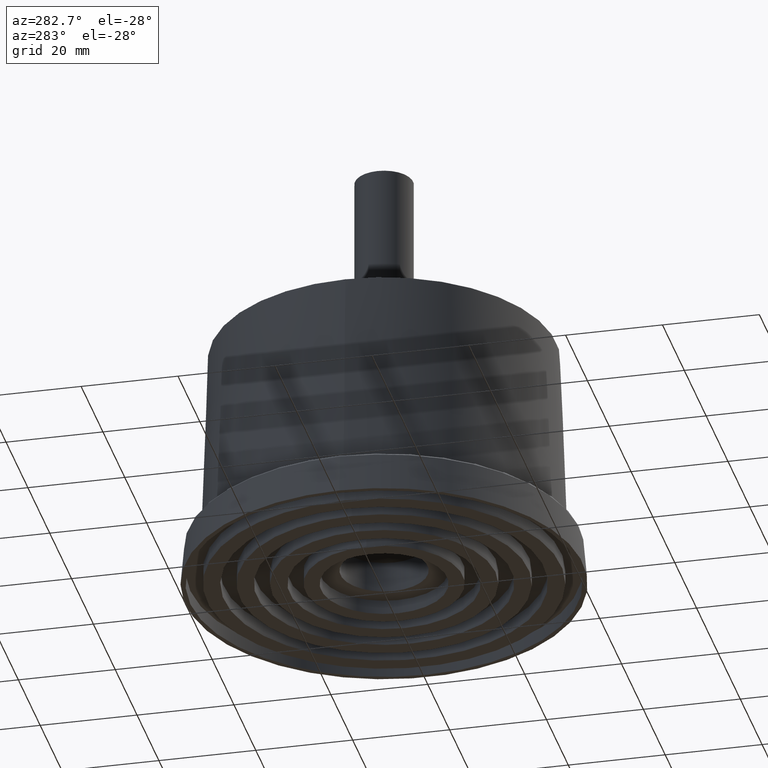
[diagram: clean part render]
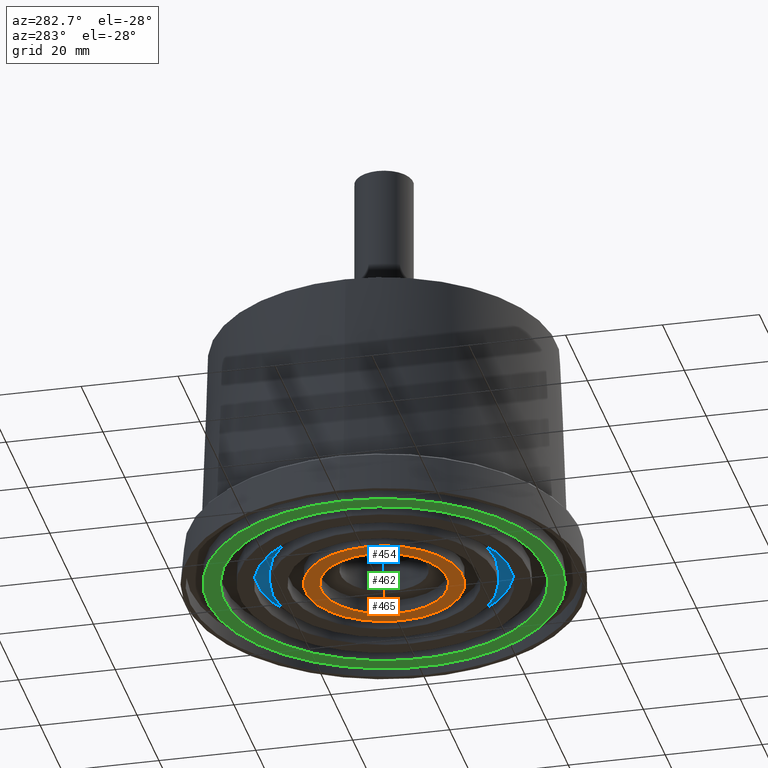
[diagram: same view with three faces highlighted in distinct colors, each labeled with its STEP entity id]
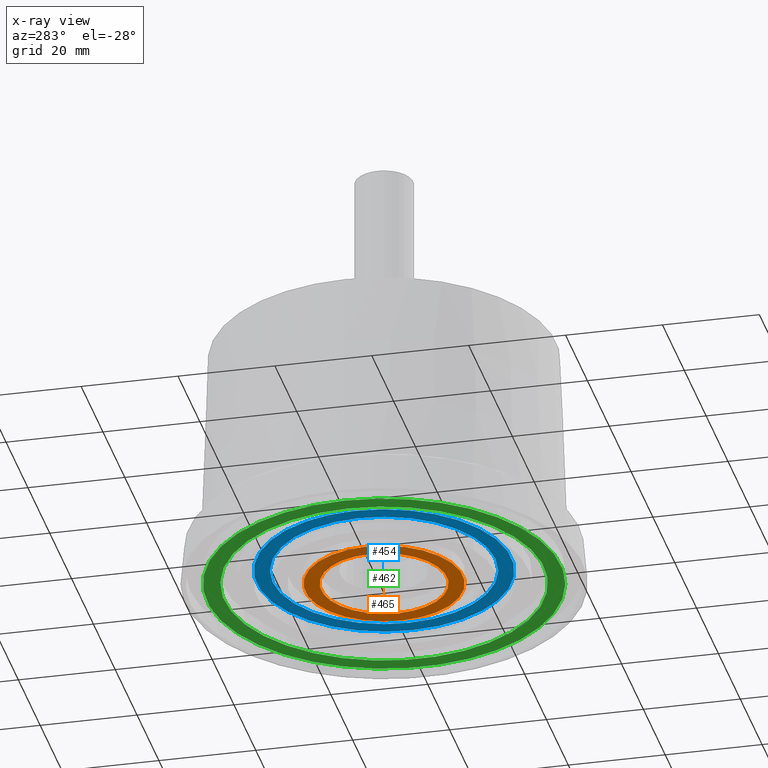
[diagram: x-ray of the same camera — body ghosted, the three highlighted faces saturated]
A machine part, auxiliary view with three faces highlighted in distinct colors.
The next image is the same camera in x-ray (body ghosted, the three faces saturated) — at least one of them is partly hidden behind the body in this view.
Their STEP definitions:

[orange] entity #465 — the highlighted planar face has unit normal (0, 0, 1).
#37=PLANE('',#550);
#76=FACE_BOUND('',#198,.T.);
#118=FACE_OUTER_BOUND('',#197,.T.);
#197=EDGE_LOOP('',(#402));
#198=EDGE_LOOP('',(#403));
#227=CIRCLE('',#516,13.);
#229=CIRCLE('',#520,16.25);
#268=VERTEX_POINT('',#792);
#270=VERTEX_POINT('',#798);
#309=EDGE_CURVE('',#268,#268,#227,.T.);
#311=EDGE_CURVE('',#270,#270,#229,.T.);
#402=ORIENTED_EDGE('',*,*,#311,.T.);
#403=ORIENTED_EDGE('',*,*,#309,.T.);
#465=ADVANCED_FACE('',(#118,#76),#37,.F.);
#516=AXIS2_PLACEMENT_3D('',#793,#647,#648);
#520=AXIS2_PLACEMENT_3D('',#799,#655,#656);
#550=AXIS2_PLACEMENT_3D('',#843,#715,#716);
#647=DIRECTION('center_axis',(0.,0.,1.));
#648=DIRECTION('ref_axis',(1.,0.,0.));
#655=DIRECTION('center_axis',(0.,0.,-1.));
#656=DIRECTION('ref_axis',(1.,0.,0.));
#715=DIRECTION('center_axis',(0.,0.,1.));
#716=DIRECTION('ref_axis',(1.,0.,0.));
#792=CARTESIAN_POINT('',(-13.,1.59204083889156E-15,0.));
#793=CARTESIAN_POINT('Origin',(0.,0.,0.));
#798=CARTESIAN_POINT('',(-16.25,1.99005104861445E-15,0.));
#799=CARTESIAN_POINT('Origin',(0.,0.,0.));
#843=CARTESIAN_POINT('Origin',(0.,0.,0.));

[blue] entity #454 — the highlighted planar face has unit normal (0, 0, 1).
#30=PLANE('',#531);
#65=FACE_BOUND('',#176,.T.);
#107=FACE_OUTER_BOUND('',#175,.T.);
#175=EDGE_LOOP('',(#380));
#176=EDGE_LOOP('',(#381));
#232=CIRCLE('',#526,23.);
#234=CIRCLE('',#529,26.25);
#273=VERTEX_POINT('',#807);
#275=VERTEX_POINT('',#812);
#314=EDGE_CURVE('',#273,#273,#232,.T.);
#316=EDGE_CURVE('',#275,#275,#234,.T.);
#380=ORIENTED_EDGE('',*,*,#316,.F.);
#381=ORIENTED_EDGE('',*,*,#314,.F.);
#454=ADVANCED_FACE('',(#107,#65),#30,.F.);
#526=AXIS2_PLACEMENT_3D('',#808,#667,#668);
#529=AXIS2_PLACEMENT_3D('',#813,#673,#674);
#531=AXIS2_PLACEMENT_3D('',#816,#677,#678);
#667=DIRECTION('center_axis',(0.,0.,-1.));
#668=DIRECTION('ref_axis',(1.,0.,0.));
#673=DIRECTION('center_axis',(0.,0.,1.));
#674=DIRECTION('ref_axis',(1.,0.,0.));
#677=DIRECTION('center_axis',(0.,0.,1.));
#678=DIRECTION('ref_axis',(1.,0.,0.));
#807=CARTESIAN_POINT('',(-23.,2.81668763803891E-15,3.));
#808=CARTESIAN_POINT('Origin',(0.,0.,3.));
#812=CARTESIAN_POINT('',(-26.25,3.2146978477618E-15,3.));
#813=CARTESIAN_POINT('Origin',(0.,0.,3.));
#816=CARTESIAN_POINT('Origin',(1.3957370996311E-15,-5.6392280615881E-16,
3.));

[green] entity #462 — the highlighted planar face has unit normal (0, 0, 1).
#34=PLANE('',#547);
#73=FACE_BOUND('',#192,.T.);
#115=FACE_OUTER_BOUND('',#191,.T.);
#191=EDGE_LOOP('',(#396));
#192=EDGE_LOOP('',(#397));
#239=CIRCLE('',#537,33.);
#241=CIRCLE('',#541,36.5);
#280=VERTEX_POINT('',#825);
#282=VERTEX_POINT('',#831);
#321=EDGE_CURVE('',#280,#280,#239,.T.);
#323=EDGE_CURVE('',#282,#282,#241,.T.);
#396=ORIENTED_EDGE('',*,*,#323,.T.);
#397=ORIENTED_EDGE('',*,*,#321,.T.);
#462=ADVANCED_FACE('',(#115,#73),#34,.F.);
#537=AXIS2_PLACEMENT_3D('',#826,#689,#690);
#541=AXIS2_PLACEMENT_3D('',#832,#697,#698);
#547=AXIS2_PLACEMENT_3D('',#840,#709,#710);
#689=DIRECTION('center_axis',(0.,0.,1.));
#690=DIRECTION('ref_axis',(1.,0.,0.));
#697=DIRECTION('center_axis',(0.,0.,-1.));
#698=DIRECTION('ref_axis',(1.,0.,0.));
#709=DIRECTION('center_axis',(0.,0.,1.));
#710=DIRECTION('ref_axis',(1.,0.,0.));
#825=CARTESIAN_POINT('',(-33.,4.04133443718627E-15,0.));
#826=CARTESIAN_POINT('Origin',(0.,0.,0.));
#831=CARTESIAN_POINT('',(-36.5,4.46996081688784E-15,0.));
#832=CARTESIAN_POINT('Origin',(0.,0.,0.));
#840=CARTESIAN_POINT('Origin',(0.,0.,0.));